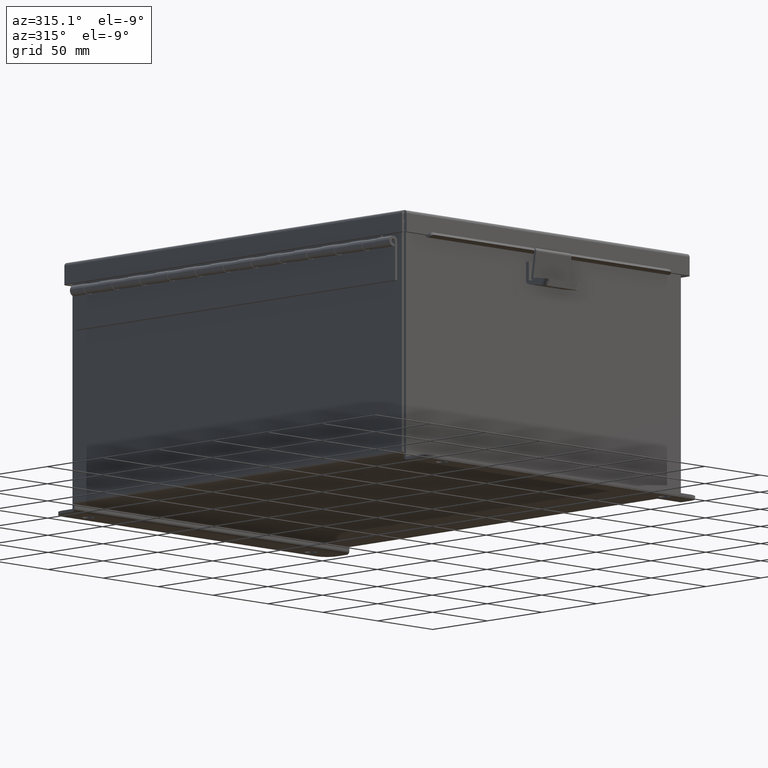
[diagram: clean part render]
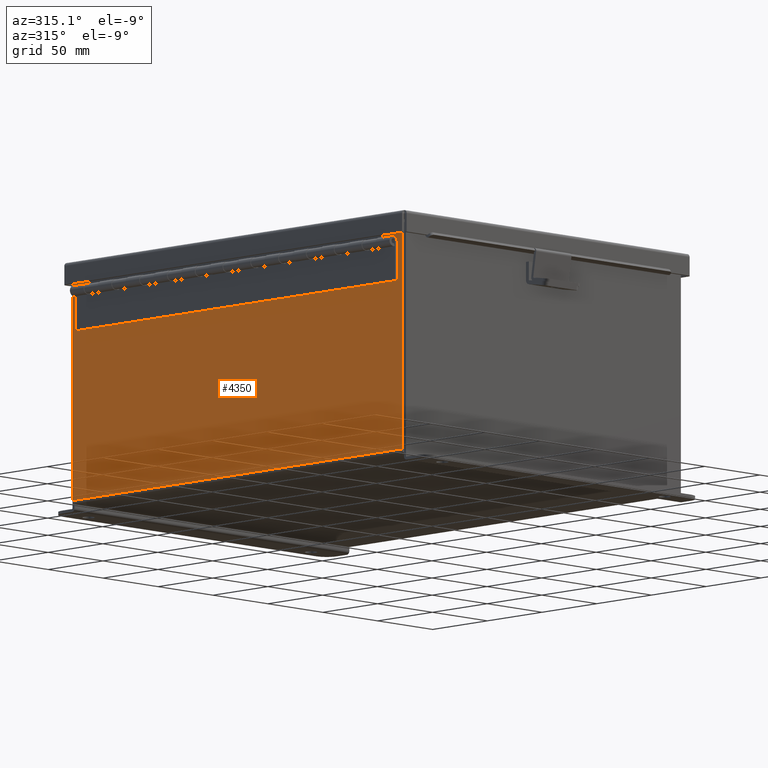
[diagram: same view with one face highlighted and labeled with its STEP entity id]
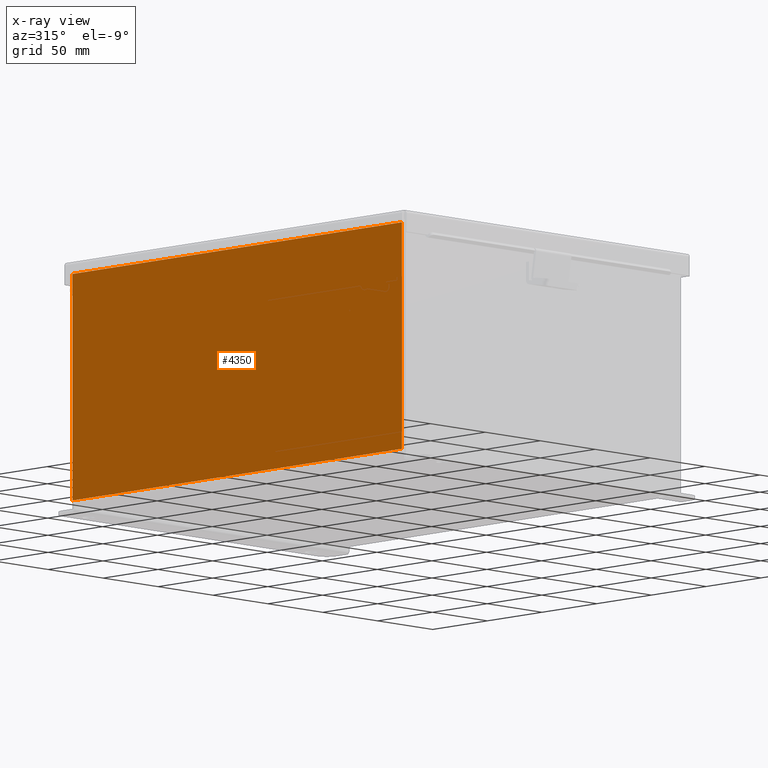
[diagram: x-ray of the same camera — body ghosted, the highlighted face saturated]
A machine part, auxiliary view. The second image highlights one B-rep face of the part: STEP entity #4350.
The next image is the same camera in x-ray: the body ghosted, the highlighted face saturated — about 0% of this face is hidden behind the body in this view.
In plain terms, the highlighted planar face has unit normal (1, 0, 0).
Its self-contained STEP definition (entity closure, byte-faithful):
#227 = LINE ( 'NONE', #16613, #13903 ) ;
#731 = FACE_OUTER_BOUND ( 'NONE', #4615, .T. ) ;
#991 = EDGE_CURVE ( 'NONE', #14072, #17536, #227, .T. ) ;
#1022 = DIRECTION ( 'NONE',  ( -3.548703509357741800E-015, 1.867738689135653700E-016, 1.000000000000000000 ) ) ;
#1211 = CARTESIAN_POINT ( 'NONE',  ( -5.000000000000021300, -5.925299999999997300, 5.837599999999999200 ) ) ;
#1225 = DIRECTION ( 'NONE',  ( 3.548703509357741000E-015, 0.0000000000000000000, -1.000000000000000000 ) ) ;
#1469 = CARTESIAN_POINT ( 'NONE',  ( -5.000000000000000000, 0.0000000000000000000, -1.800458568324353400E-014 ) ) ;
#1559 = ORIENTED_EDGE ( 'NONE', *, *, #991, .F. ) ;
#2422 = CARTESIAN_POINT ( 'NONE',  ( -5.000000000000000000, -5.925300000000000000, -1.689477243581742800E-014 ) ) ;
#2835 = CARTESIAN_POINT ( 'NONE',  ( -5.000000000000000000, 5.925300000000000000, -1.800458568324353400E-014 ) ) ;
#2971 = CARTESIAN_POINT ( 'NONE',  ( -5.000000000000000000, 5.925300000000000000, 0.01299999999999984300 ) ) ;
#3488 = AXIS2_PLACEMENT_3D ( 'NONE', #1469, #9984, #1225 ) ;
#3758 = ORIENTED_EDGE ( 'NONE', *, *, #13081, .T. ) ;
#3823 = CARTESIAN_POINT ( 'NONE',  ( -5.000000000000021300, 5.925300000000000000, 5.837599999999999200 ) ) ;
#4219 = DIRECTION ( 'NONE',  ( 3.548703509357741800E-015, 0.0000000000000000000, -1.000000000000000000 ) ) ;
#4350 = ADVANCED_FACE ( 'NONE', ( #731 ), #14836, .F. ) ;
#4463 = VERTEX_POINT ( 'NONE', #3823 ) ;
#4615 = EDGE_LOOP ( 'NONE', ( #10142, #6563, #1559, #3758 ) ) ;
#4914 = VERTEX_POINT ( 'NONE', #1211 ) ;
#6563 = ORIENTED_EDGE ( 'NONE', *, *, #10197, .T. ) ;
#7470 = VECTOR ( 'NONE', #8829, 39.37007874015748100 ) ;
#8758 = DIRECTION ( 'NONE',  ( -0.0000000000000000000, 1.000000000000000000, -0.0000000000000000000 ) ) ;
#8829 = DIRECTION ( 'NONE',  ( 0.0000000000000000000, 1.000000000000000000, 0.0000000000000000000 ) ) ;
#9040 = LINE ( 'NONE', #2835, #9469 ) ;
#9469 = VECTOR ( 'NONE', #4219, 39.37007874015748100 ) ;
#9984 = DIRECTION ( 'NONE',  ( 1.000000000000000000, 0.0000000000000000000, 3.548703509357741000E-015 ) ) ;
#10142 = ORIENTED_EDGE ( 'NONE', *, *, #13019, .T. ) ;
#10197 = EDGE_CURVE ( 'NONE', #4463, #17536, #9040, .T. ) ;
#10491 = CARTESIAN_POINT ( 'NONE',  ( -5.000000000000000000, -5.925299999999998200, 0.01299999999999984300 ) ) ;
#11956 = LINE ( 'NONE', #15646, #7470 ) ;
#13019 = EDGE_CURVE ( 'NONE', #4914, #4463, #11956, .T. ) ;
#13081 = EDGE_CURVE ( 'NONE', #14072, #4914, #14297, .T. ) ;
#13903 = VECTOR ( 'NONE', #8758, 39.37007874015748100 ) ;
#14072 = VERTEX_POINT ( 'NONE', #10491 ) ;
#14297 = LINE ( 'NONE', #2422, #17509 ) ;
#14836 = PLANE ( 'NONE',  #3488 ) ;
#15646 = CARTESIAN_POINT ( 'NONE',  ( -5.000000000000021300, -5.925299999999998200, 5.837599999999999200 ) ) ;
#16613 = CARTESIAN_POINT ( 'NONE',  ( -5.000000000000000000, 5.925300000000000000, 0.01299999999999984300 ) ) ;
#17509 = VECTOR ( 'NONE', #1022, 39.37007874015748100 ) ;
#17536 = VERTEX_POINT ( 'NONE', #2971 ) ;